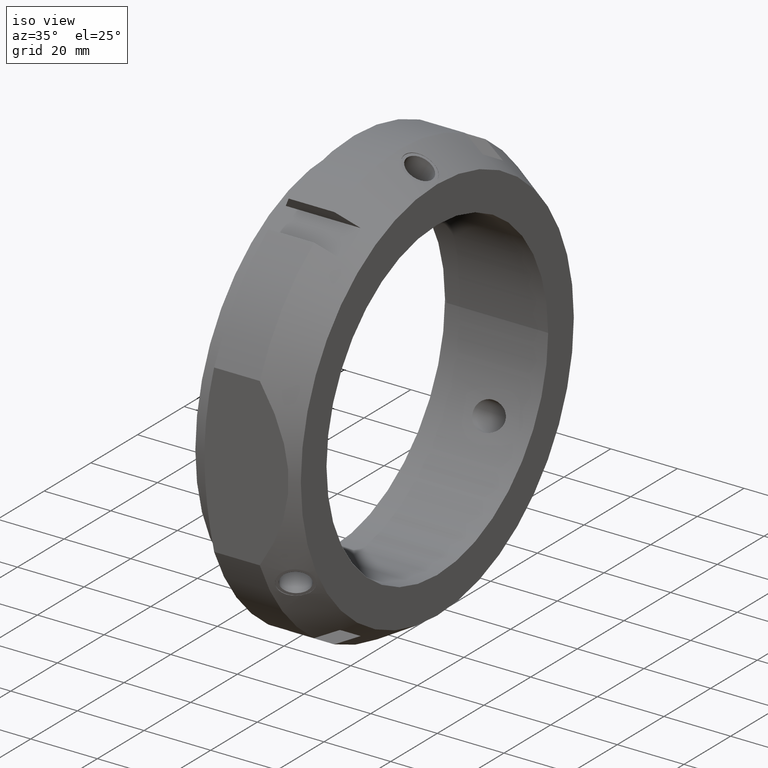
[diagram: clean part render]
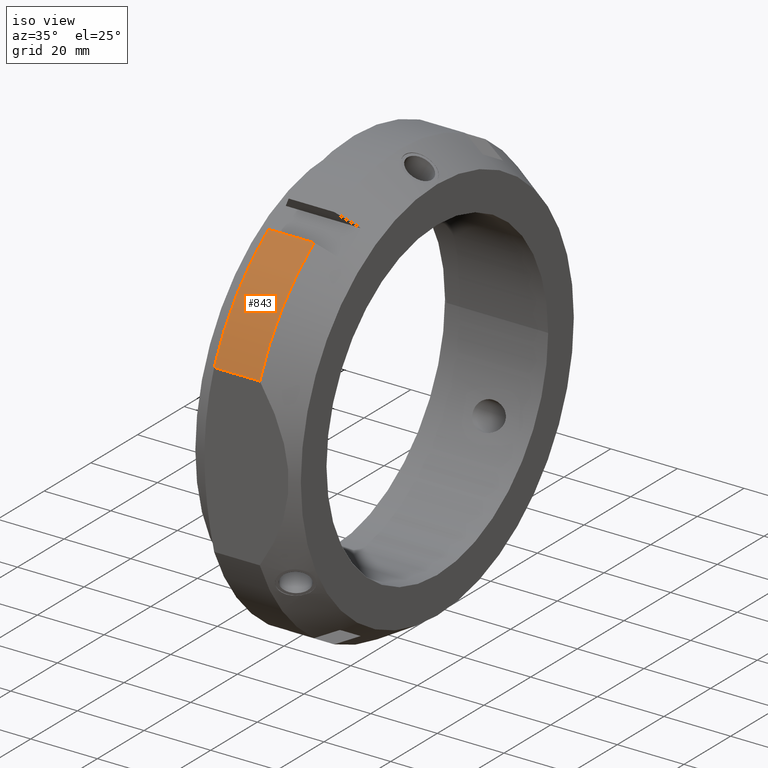
[diagram: same view with one face highlighted and labeled with its STEP entity id]
A machine part, iso view. The second image highlights one B-rep face of the part: STEP entity #843.
In plain terms, the highlighted cylindrical surface (partial cylindrical patch) has radius 65 mm, axis along (1, 0, 0).
Its self-contained STEP definition (entity closure, byte-faithful):
#394=CARTESIAN_POINT('',(7.041451884327348,-60.000000000000043,24.99999999999989));
#395=VERTEX_POINT('',#394);
#409=CARTESIAN_POINT('',(7.041451884327348,-36.733830510961496,53.624860801609117));
#410=VERTEX_POINT('',#409);
#411=CARTESIAN_POINT('',(7.041451884327348,0.0,0.0));
#412=DIRECTION('',(1.0,0.0,0.0));
#413=DIRECTION('',(0.0,1.0,0.0));
#414=AXIS2_PLACEMENT_3D('',#411,#412,#413);
#415=CIRCLE('',#414,65.0);
#416=EDGE_CURVE('',#410,#395,#415,.T.);
#769=CARTESIAN_POINT('',(20.741669750802298,-36.733830510961496,53.624860801609124));
#770=VERTEX_POINT('',#769);
#771=CARTESIAN_POINT('',(20.741669750802298,-36.733830510961496,53.624860801609117));
#772=DIRECTION('',(-1.0,0.0,0.0));
#773=VECTOR('',#772,13.700217866474951);
#774=LINE('',#771,#773);
#775=EDGE_CURVE('',#770,#410,#774,.T.);
#819=CARTESIAN_POINT('',(13.891560817564814,0.0,0.0));
#820=DIRECTION('',(1.0,0.0,0.0));
#821=DIRECTION('',(0.0,1.0,0.0));
#822=AXIS2_PLACEMENT_3D('',#819,#820,#821);
#823=CYLINDRICAL_SURFACE('',#822,65.0);
#824=ORIENTED_EDGE('',*,*,#775,.T.);
#825=ORIENTED_EDGE('',*,*,#416,.T.);
#826=CARTESIAN_POINT('',(20.741669750802281,-60.000000000000043,24.99999999999989));
#827=VERTEX_POINT('',#826);
#828=CARTESIAN_POINT('',(7.041451884327348,-60.000000000000043,24.99999999999989));
#829=DIRECTION('',(1.0,0.0,0.0));
#830=VECTOR('',#829,13.700217866474933);
#831=LINE('',#828,#830);
#832=EDGE_CURVE('',#395,#827,#831,.T.);
#833=ORIENTED_EDGE('',*,*,#832,.T.);
#834=CARTESIAN_POINT('',(20.741669750802281,0.0,0.0));
#835=DIRECTION('',(1.0,0.0,0.0));
#836=DIRECTION('',(0.0,1.0,0.0));
#837=AXIS2_PLACEMENT_3D('',#834,#835,#836);
#838=CIRCLE('',#837,65.0);
#839=EDGE_CURVE('',#770,#827,#838,.T.);
#840=ORIENTED_EDGE('',*,*,#839,.F.);
#841=EDGE_LOOP('',(#824,#825,#833,#840));
#842=FACE_OUTER_BOUND('',#841,.T.);
#843=ADVANCED_FACE('',(#842),#823,.T.);